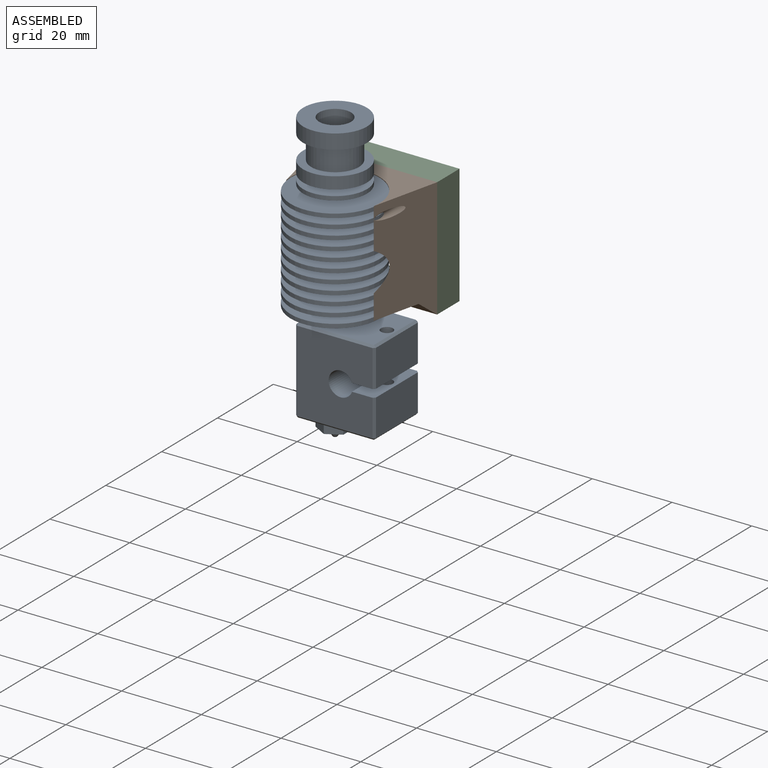
[diagram: assembled view]
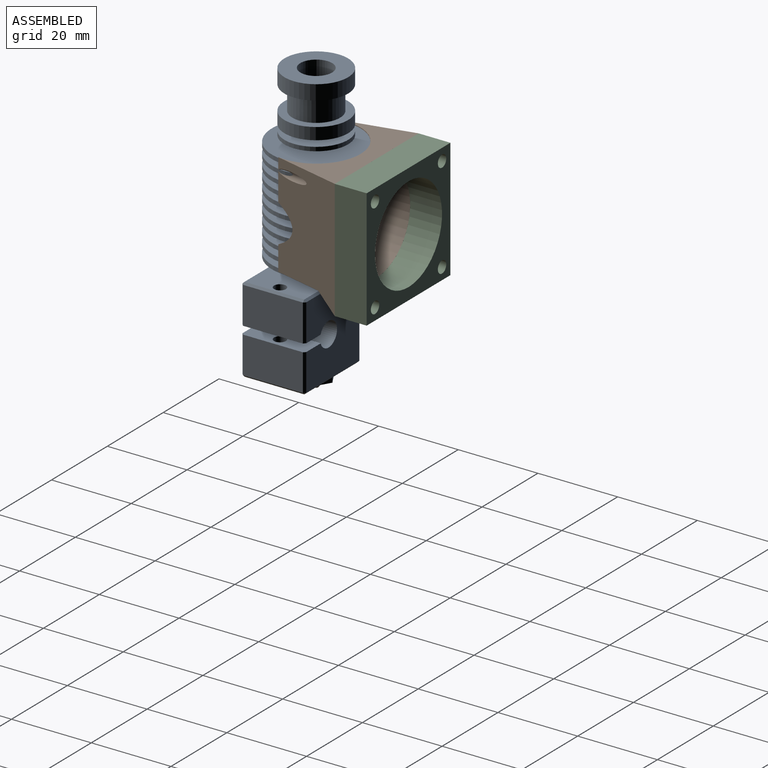
[diagram: assembled view, second angle]
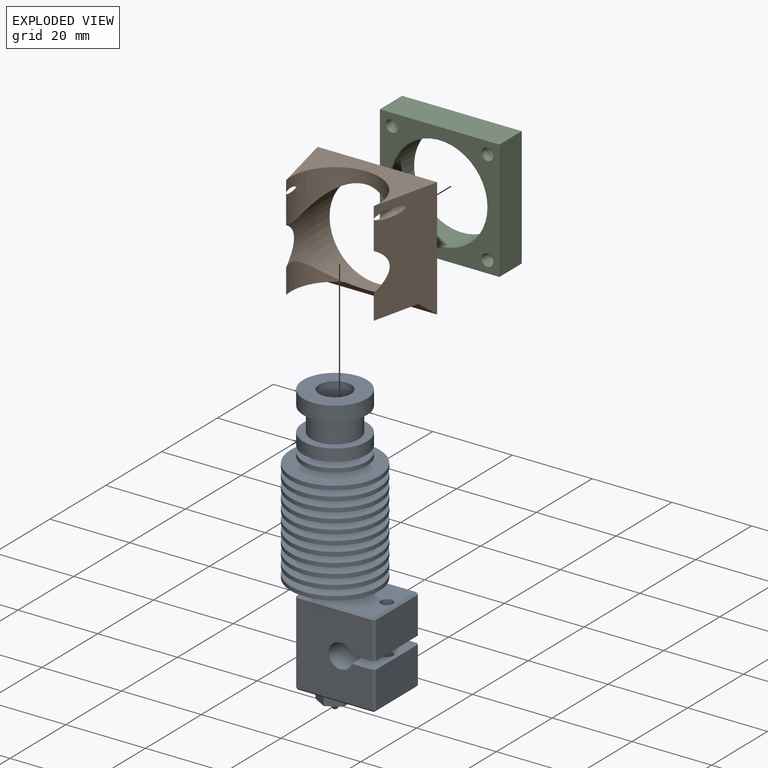
[diagram: exploded view]
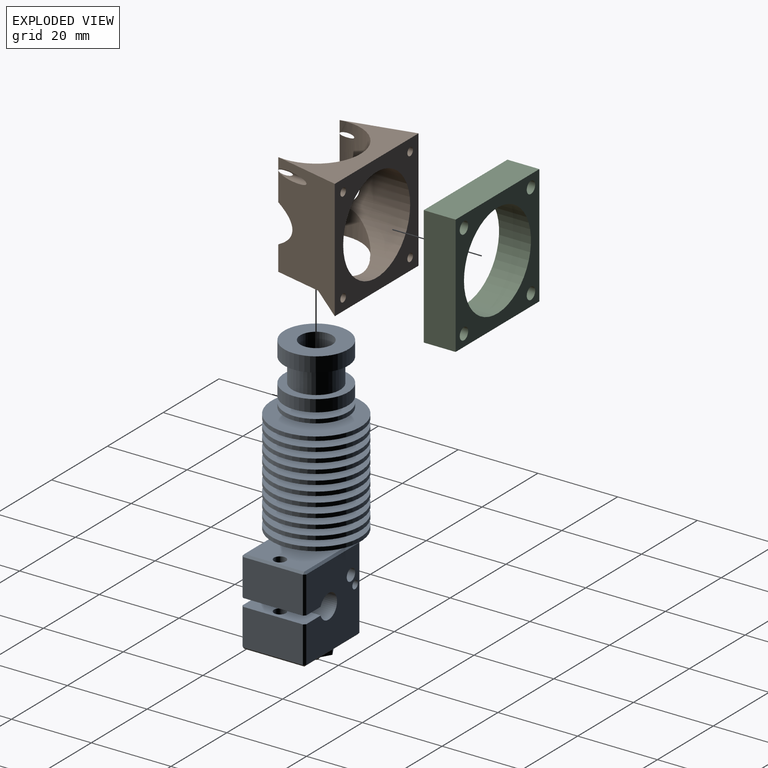
[diagram: exploded view, second angle]
ASSEMBLY  parts=3 mates=2
PART A: 109 faces, bbox 26.7x22.3x72.3 mm
  f0: plane 4x3.5mm, normal (0.5,-0.87,0), area 16.2mm2, adj f1,f5,f32,f38
  f1: plane 4x3.5mm, normal (-0.5,-0.87,0), area 16.2mm2, adj f0,f2,f32,f38
  f2: plane 4.04x4mm, normal (-1,0,0), area 16.2mm2, adj f1,f3,f32,f38
  f3: plane 4x3.5mm, normal (-0.5,0.87,0), area 16.2mm2, adj f2,f4,f32,f38
  f4: plane 4x3.5mm, normal (0.5,0.87,0), area 16.2mm2, adj f3,f5,f32,f38
  f5: plane 4.04x4mm, normal (1,0,0), area 16.2mm2, adj f0,f4,f32,f38
  f6: plane 0.5x0.5mm, normal (0.58,-0.58,0.58), area 0.2mm2, adj f24,f26,f27
  f7: plane 0.5x0.5mm, normal (-0.58,-0.58,0.58), area 0.2mm2, adj f10,f23,f26
  f8: plane 0.5x0.5mm, normal (0.58,0.58,0.58), area 0.2mm2, adj f12,f24,f25
  f9: plane 0.5x0.5mm, normal (-0.58,-0.58,-0.58), area 0.2mm2, adj f10,f15,f22
  f10: plane 20.5x0.5mm, normal (-0.71,-0.71,0), area 14.5mm2, adj f7,f9,f33,f49
  f11: plane 0.5x0.5mm, normal (-0.58,0.58,0.58), area 0.2mm2, adj f12,f17,f23
  f12: plane 19x0.5mm, normal (0,0.71,0.71), area 13.4mm2, adj f8,f11,f28,f31
  f13: plane 0.5x0.5mm, normal (0.58,-0.58,-0.58), area 0.2mm2, adj f14,f15,f20
  f14: plane 9.22x0.5mm, normal (0.71,-0.71,0), area 6.5mm2, adj f13,f48,f49,f50
  f15: plane 19x0.5mm, normal (0,-0.71,-0.71), area 13.4mm2, adj f9,f13,f32,f49
  f16: plane 0.5x0.5mm, normal (-0.58,0.58,-0.58), area 0.2mm2, adj f17,f21,f22
  f17: plane 20.5x0.5mm, normal (-0.71,0.71,0), area 14.5mm2, adj f11,f16,f28,f33
  f18: plane 0.5x0.5mm, normal (0.58,0.58,-0.58), area 0.2mm2, adj f19,f20,f21
  f19: plane 9.22x0.5mm, normal (0.71,0.71,0), area 6.5mm2, adj f18,f28,f48,f50
  f20: plane 15x0.5mm, normal (0.71,0,-0.71), area 10.6mm2, adj f13,f18,f32,f50
  f21: plane 19x0.5mm, normal (0,0.71,-0.71), area 13.4mm2, adj f16,f18,f28,f32
  f22: plane 15x0.5mm, normal (-0.71,0,-0.71), area 10.6mm2, adj f9,f16,f32,f33
  f23: plane 15x0.5mm, normal (-0.71,0,0.71), area 10.6mm2, adj f7,f11,f31,f33
  f24: plane 15x0.5mm, normal (0.71,0,0.71), area 10.6mm2, adj f6,f8,f29,f31
  f25: plane 9.28x0.5mm, normal (0.71,0.71,0), area 6.6mm2, adj f8,f28,f29,f30
  f26: plane 19x0.5mm, normal (0,-0.71,0.71), area 13.4mm2, adj f6,f7,f31,f49
  f27: plane 9.28x0.5mm, normal (0.71,-0.71,0), area 6.6mm2, adj f6,f29,f30,f49
  f28: plane 20.5x19mm, normal (0,1,0), area 340.5mm2, adj f12,f17,f19,f21,f25,f30,f41,f45
  f29: plane 15x9.28mm, normal (1,0,0), area 139.2mm2, adj f24,f25,f27,f30
  f30: plane 16x5.65mm, normal (0,0,-1), area 83mm2, adj f25,f27,f28,f29,f40,f47,f49
  f31: plane 19x15mm, normal (0,0,1), area 271.8mm2, adj f12,f23,f24,f26,f40,f51
  f32: plane 19x15mm, normal (0,0,-1), area 235.5mm2, adj f0,f1,f2,f3,f4,f5,f15,f20
  f33: plane 20.5x15mm, normal (-1,0,0), area 307.5mm2, adj f10,f17,f22,f23
  f34: cylinder r=0.2mm len=13mm, axis (0,0,1), area 16.3mm2, adj f35,f36
  f35: plane 0.4x0.4mm, normal (0,0,-1), area 0.1mm2, adj f34
  f36: plane 1x1mm, normal (0,0,-1), area 0.7mm2, adj f34,f37
  f37: cone r=1.9mm half-angle=35deg, axis (0,0,1), area 18.4mm2, adj f36,f38
  f38: plane 8.08x7mm, normal (0,0,-1), area 31.1mm2, adj f0,f1,f2,f3,f4,f5,f37
  f39: cylinder r=1.5mm len=9.72mm, axis (0,0,-1), area 91.6mm2, adj f32,f48
  f40: cylinder r=1.5mm len=9.78mm, axis (0,0,-1), area 92.2mm2, adj f30,f31
  f41: cylinder r=1mm len=2mm, axis (0,-1,0), area 12.6mm2, adj f28,f42
  f42: plane 2x2mm, normal (0,1,0), area 1.3mm2, adj f41,f43
  f43: cylinder r=0.78mm len=2.45mm, axis (0,-1,0), area 11.9mm2, adj f42,f44
  f44: plane 1.55x1.55mm, normal (0,1,0), area 1.9mm2, adj f43
  f45: cylinder r=1.5mm len=3.45mm, axis (0,-1,0), area 32.5mm2, adj f28,f46
  f46: plane 3x3mm, normal (0,1,0), area 7.1mm2, adj f45
  f47: cylinder r=3.02mm len=16mm, axis (0,-1,0), area 271.5mm2, adj f28,f30,f48,f49
  f48: plane 16x5.65mm, normal (0,0,1), area 83mm2, adj f14,f19,f28,f39,f47,f49,f50
  f49: plane 20.5x19mm, normal (0,-1,0), area 350.7mm2, adj f10,f14,f15,f26,f27,f30,f47,f48
  f50: plane 15x9.22mm, normal (1,0,0), area 138.3mm2, adj f14,f19,f20,f48
  f51: cylinder r=1.4mm len=2.8mm, axis (0,0,-1), area 18.5mm2, adj f31,f108
  f52: cylinder r=4mm len=8mm, axis (0,0,-1), area 163.4mm2, adj f53,f54
  f53: plane 8x8mm, normal (0,0,1), area 50.3mm2, adj f52
  f54: plane 16x16mm, normal (0,0,1), area 150.8mm2, adj f52,f55
  f55: cylinder r=8mm len=16mm, axis (0,0,-1), area 186mm2, adj f54,f56
  f56: plane 16x16mm, normal (0,0,-1), area 88mm2, adj f55,f57
  f57: cylinder r=6mm len=12mm, axis (0,0,-1), area 226.2mm2, adj f56,f58
  f58: plane 16x16mm, normal (0,0,1), area 88mm2, adj f57,f59
  f59: cylinder r=8mm len=16mm, axis (0,0,-1), area 150.8mm2, adj f58,f60
  f60: plane 16x16mm, normal (0,0,-1), area 137.4mm2, adj f59,f61
  f61: cylinder r=4.5mm len=9mm, axis (0,0,-1), area 42.4mm2, adj f60,f62
  f62: plane 16x16mm, normal (0,0,1), area 137.4mm2, adj f61,f63
  f63: cylinder r=8mm len=16mm, axis (0,0,-1), area 50.3mm2, adj f62,f64
  f64: plane 16x16mm, normal (0,0,-1), area 137.4mm2, adj f63,f65
  f65: cylinder r=4.5mm len=9mm, axis (0,0,-1), area 42.4mm2, adj f64,f66
  f66: plane 22.3x22.3mm, normal (0,0,1), area 327mm2, adj f65,f67
  f67: cylinder r=11.15mm len=22.3mm, axis (0,0,-1), area 70.1mm2, adj f66,f68
  f68: plane 22.3x22.3mm, normal (0,0,-1), area 319.7mm2, adj f67,f69
  f69: cylinder r=4.75mm len=9.5mm, axis (0,0,-1), area 44.8mm2, adj f68,f70
  f70: plane 22.3x22.3mm, normal (0,0,1), area 319.7mm2, adj f69,f71
  f71: cylinder r=11.15mm len=22.3mm, axis (0,0,-1), area 70.1mm2, adj f70,f72
  f72: plane 22.3x22.3mm, normal (0,0,-1), area 312mm2, adj f71,f73
  f73: cylinder r=5mm len=10mm, axis (0,0,-1), area 47.1mm2, adj f72,f74
  f74: plane 22.3x22.3mm, normal (0,0,1), area 312mm2, adj f73,f75
  f75: cylinder r=11.15mm len=22.3mm, axis (0,0,-1), area 70.1mm2, adj f74,f76
  f76: plane 22.3x22.3mm, normal (0,0,-1), area 304mm2, adj f75,f77
  f77: cylinder r=5.25mm len=10.5mm, axis (0,0,-1), area 49.5mm2, adj f76,f78
  f78: plane 22.3x22.3mm, normal (0,0,1), area 304mm2, adj f77,f79
  f79: cylinder r=11.15mm len=22.3mm, axis (0,0,-1), area 70.1mm2, adj f78,f80
  f80: plane 22.3x22.3mm, normal (0,0,-1), area 295.5mm2, adj f79,f81
  f81: cylinder r=5.5mm len=11mm, axis (0,0,-1), area 51.8mm2, adj f80,f82
  f82: plane 22.3x22.3mm, normal (0,0,1), area 295.5mm2, adj f81,f83
  f83: cylinder r=11.15mm len=22.3mm, axis (0,0,-1), area 70.1mm2, adj f82,f84
  f84: plane 22.3x22.3mm, normal (0,0,-1), area 286.7mm2, adj f83,f85
  f85: cylinder r=5.75mm len=11.5mm, axis (0,0,-1), area 54.2mm2, adj f84,f86
  f86: plane 22.3x22.3mm, normal (0,0,1), area 286.7mm2, adj f85,f87
  f87: cylinder r=11.15mm len=22.3mm, axis (0,0,-1), area 70.1mm2, adj f86,f88
  f88: plane 22.3x22.3mm, normal (0,0,-1), area 277.5mm2, adj f87,f89
  f89: cylinder r=6mm len=12mm, axis (0,0,-1), area 56.5mm2, adj f88,f90
  f90: plane 22.3x22.3mm, normal (0,0,1), area 277.5mm2, adj f89,f91
  f91: cylinder r=11.15mm len=22.3mm, axis (0,0,-1), area 70.1mm2, adj f90,f92
  f92: plane 22.3x22.3mm, normal (0,0,-1), area 267.9mm2, adj f91,f93
  f93: cylinder r=6.25mm len=12.5mm, axis (0,0,-1), area 58.9mm2, adj f92,f94
  f94: plane 22.3x22.3mm, normal (0,0,1), area 267.9mm2, adj f93,f95
  f95: cylinder r=11.15mm len=22.3mm, axis (0,0,-1), area 70.1mm2, adj f94,f96
  f96: plane 22.3x22.3mm, normal (0,0,-1), area 257.8mm2, adj f95,f97
  f97: cylinder r=6.5mm len=13mm, axis (0,0,-1), area 61.3mm2, adj f96,f98
  f98: plane 22.3x22.3mm, normal (0,0,1), area 257.8mm2, adj f97,f99
  f99: cylinder r=11.15mm len=22.3mm, axis (0,0,-1), area 70.1mm2, adj f98,f100
  f100: plane 22.3x22.3mm, normal (0,0,-1), area 247.4mm2, adj f99,f101
  f101: cylinder r=6.75mm len=13.5mm, axis (0,0,-1), area 63.6mm2, adj f100,f102
  f102: plane 22.3x22.3mm, normal (0,0,1), area 247.4mm2, adj f101,f103
  f103: cylinder r=11.15mm len=22.3mm, axis (0,0,-1), area 70.1mm2, adj f102,f104
  f104: plane 22.3x22.3mm, normal (0,0,-1), area 236.6mm2, adj f103,f105
  f105: cylinder r=7mm len=14mm, axis (0,0,-1), area 66mm2, adj f104,f106
  f106: plane 22.3x22.3mm, normal (0,0,1), area 236.6mm2, adj f105,f107
  f107: cylinder r=11.15mm len=22.3mm, axis (0,0,-1), area 70.1mm2, adj f106,f108
  f108: plane 22.3x22.3mm, normal (0,0,-1), area 384.4mm2, adj f51,f107
PART B: 15 faces, bbox 30.4x17.5x30.4 mm
  f0: cylinder r=11.15mm len=22.3mm, axis (0,0,-1), area 257.9mm2, adj f3,f4,f6,f10,f11,f12
  f1: cylinder r=11.15mm len=11.92mm, axis (0,0,-1), area 56.3mm2, adj f4,f8,f10
  f2: cylinder r=11.15mm len=11.92mm, axis (0,0,-1), area 56.3mm2, adj f3,f7,f10
  f3: plane 30x17mm, normal (-0.97,-0.23,0), area 422.3mm2, adj f0,f2,f5,f6,f7,f9,f10,f12
  f4: plane 30x17mm, normal (0.97,-0.23,0), area 422.3mm2, adj f0,f1,f5,f6,f8,f9,f10,f11
  f5: plane 30x30mm, normal (0,1,0), area 435mm2, adj f3,f4,f6,f9,f10,f11,f12,f13
  f6: plane 30x17mm, normal (0,0,-1), area 205.6mm2, adj f0,f3,f4,f5
  f7: plane 12x9.03mm, normal (0,0,1), area 33.8mm2, adj f2,f3,f9,f10
  f8: plane 12x9.03mm, normal (0,0,1), area 33.8mm2, adj f1,f4,f9,f10
  f9: plane 30.44x5.44mm, normal (0,-0.62,0.78), area 164.2mm2, adj f3,f4,f5,f7,f8,f10,f13,f14
  f10: cylinder r=12mm len=24mm, axis (0,1,0), area 657.3mm2, adj f0,f1,f2,f3,f4,f5,f7,f8
  f11: cylinder r=1mm len=16.98mm, axis (0,1,0), area 76.9mm2, adj f0,f4,f5
  f12: cylinder r=1mm len=17.04mm, axis (0,1,0), area 76.8mm2, adj f0,f3,f5
  f13: cylinder r=1mm len=5mm, axis (0,1,0), area 23.3mm2, adj f5,f9
  f14: cylinder r=1mm len=5mm, axis (0,1,0), area 23.3mm2, adj f5,f9
PART C: 11 faces, bbox 30x8x30 mm
  f0: plane 30x8mm, normal (1,0,0), area 240mm2, adj f1,f4,f5,f6
  f1: plane 30x8mm, normal (0,0,-1), area 240mm2, adj f0,f2,f5,f6
  f2: plane 30x8mm, normal (-1,0,0), area 240mm2, adj f1,f4,f5,f6
  f3: cylinder r=12mm len=24mm, axis (0,-1,0), area 603.2mm2, adj f5,f6
  f4: plane 30x8mm, normal (0,0,1), area 240mm2, adj f0,f2,f5,f6
  f5: plane 30x30mm, normal (0,1,0), area 419.3mm2, adj f0,f1,f2,f3,f4,f7,f8,f9
  f6: plane 30x30mm, normal (0,-1,0), area 419.3mm2, adj f0,f1,f2,f3,f4,f7,f8,f9
  f7: cylinder r=1.5mm len=8mm, axis (0,-1,0), area 75.4mm2, adj f5,f6
  f8: cylinder r=1.5mm len=8mm, axis (0,-1,0), area 75.4mm2, adj f5,f6
  f9: cylinder r=1.5mm len=8mm, axis (0,-1,0), area 75.4mm2, adj f5,f6
  f10: cylinder r=1.5mm len=8mm, axis (0,-1,0), area 75.4mm2, adj f5,f6
PLACE A t=(2.31,-3.94,-78.82)mm
PLACE B rot(axis=(0,1,0),180deg) t=(2.31,-3.94,6.54)mm
PLACE C rot(axis=(0,1,0),180deg) t=(2.31,-3.94,6.54)mm
MATE fastened B.f13 <-> C.f8  axis (0,1,0) through (14.31,11.21,-50.06)mm
MATE cylindrical B.f0 <-> A.f51  axis (0,0,-1) through (2.31,-3.94,-49.06)mm
